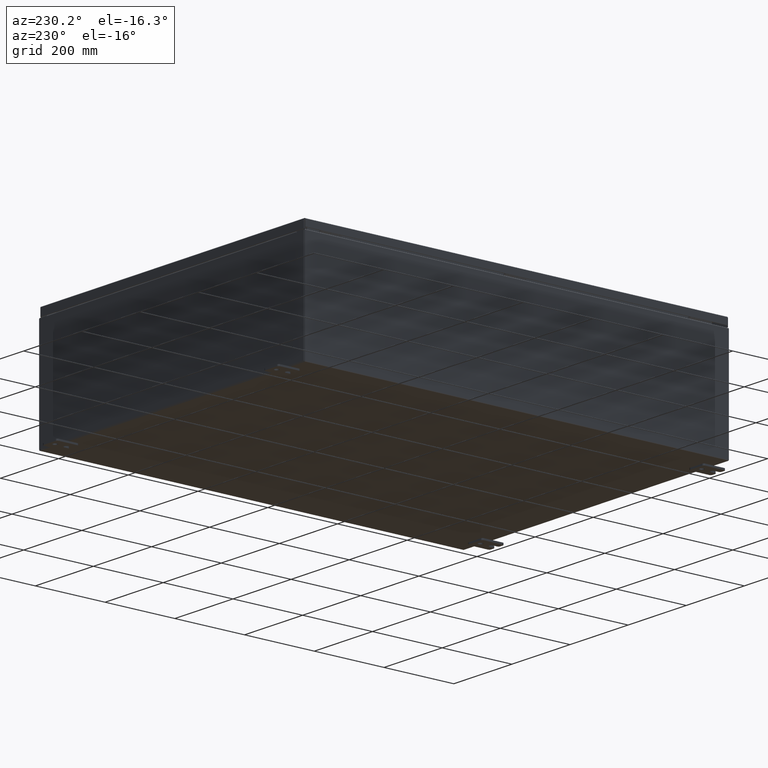
[diagram: clean part render]
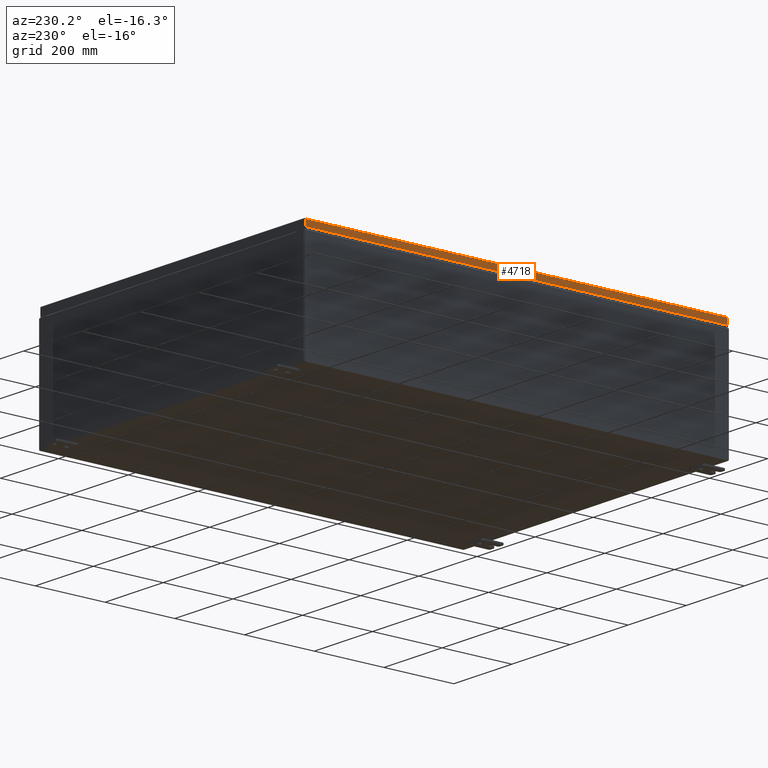
[diagram: same view with one face highlighted and labeled with its STEP entity id]
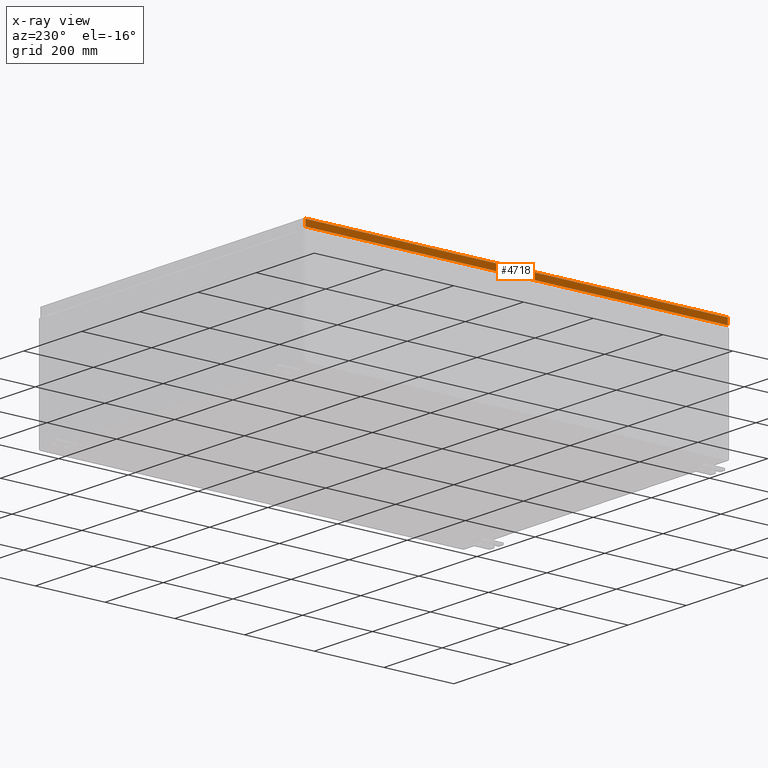
[diagram: x-ray of the same camera — body ghosted, the highlighted face saturated]
A machine part, auxiliary view. The second image highlights one B-rep face of the part: STEP entity #4718.
The next image is the same camera in x-ray: the body ghosted, the highlighted face saturated — about 0% of this face is hidden behind the body in this view.
In plain terms, the highlighted planar face has unit normal (1, -0, -0).
Its self-contained STEP definition (entity closure, byte-faithful):
#20 = DIRECTION ( 'NONE',  ( -9.129935853499285800E-017, -1.000000000000000000, 1.369490378024904800E-016 ) ) ;
#2329 = DIRECTION ( 'NONE',  ( -3.034122441942816500E-015, 6.982962677686267500E-015, -1.000000000000000000 ) ) ;
#3076 = CARTESIAN_POINT ( 'NONE',  ( -17.93749999999999600, 23.84865786437627100, -0.08770000000000659200 ) ) ;
#4718 = ADVANCED_FACE ( 'NONE', ( #18426 ), #10976, .F. ) ;
#4972 = CARTESIAN_POINT ( 'NONE',  ( -17.93749999999999600, 1.637682243721441900E-015, 5.468538495836084400E-014 ) ) ;
#10433 = CARTESIAN_POINT ( 'NONE',  ( -17.93749999999999600, 23.84865786437627100, 2.212196727382094500E-013 ) ) ;
#10976 = PLANE ( 'NONE',  #29817 ) ;
#11825 = VECTOR ( 'NONE', #21109, 39.37007874015748100 ) ;
#12539 = VECTOR ( 'NONE', #24168, 39.37007874015748100 ) ;
#12986 = CARTESIAN_POINT ( 'NONE',  ( -17.93750000000000000, -23.84865786437626800, -0.7949999999999996000 ) ) ;
#13226 = VERTEX_POINT ( 'NONE', #3076 ) ;
#16344 = EDGE_LOOP ( 'NONE', ( #35710, #31009, #64311, #46879 ) ) ;
#17978 = VECTOR ( 'NONE', #20, 39.37007874015748100 ) ;
#18426 = FACE_OUTER_BOUND ( 'NONE', #16344, .T. ) ;
#21109 = DIRECTION ( 'NONE',  ( -3.034122441942816500E-015, 6.982962677686267500E-015, -1.000000000000000000 ) ) ;
#22143 = VERTEX_POINT ( 'NONE', #29840 ) ;
#24168 = DIRECTION ( 'NONE',  ( 9.129935853499365900E-017, 1.000000000000000000, 1.226835130313977200E-016 ) ) ;
#24622 = LINE ( 'NONE', #63623, #17978 ) ;
#26689 = LINE ( 'NONE', #61298, #12539 ) ;
#27984 = CARTESIAN_POINT ( 'NONE',  ( -17.93750000000000000, -23.84865786437626800, -0.08770000000000334500 ) ) ;
#29400 = VERTEX_POINT ( 'NONE', #12986 ) ;
#29817 = AXIS2_PLACEMENT_3D ( 'NONE', #4972, #35249, #57379 ) ;
#29840 = CARTESIAN_POINT ( 'NONE',  ( -17.93749999999999600, 23.84865786437627500, -0.7949999999999938200 ) ) ;
#30430 = LINE ( 'NONE', #44762, #57490 ) ;
#31009 = ORIENTED_EDGE ( 'NONE', *, *, #47614, .T. ) ;
#34678 = EDGE_CURVE ( 'NONE', #13226, #42966, #24622, .T. ) ;
#35249 = DIRECTION ( 'NONE',  ( 1.000000000000000000, -9.129935853499329000E-017, -3.034122441942816500E-015 ) ) ;
#35710 = ORIENTED_EDGE ( 'NONE', *, *, #34678, .F. ) ;
#42966 = VERTEX_POINT ( 'NONE', #27984 ) ;
#44762 = CARTESIAN_POINT ( 'NONE',  ( -17.93750000000000000, -23.84865786437627100, -0.07469999999999976700 ) ) ;
#46879 = ORIENTED_EDGE ( 'NONE', *, *, #68898, .F. ) ;
#47614 = EDGE_CURVE ( 'NONE', #13226, #22143, #68334, .T. ) ;
#50243 = EDGE_CURVE ( 'NONE', #29400, #22143, #26689, .T. ) ;
#57379 = DIRECTION ( 'NONE',  ( -3.034122441942816500E-015, 0.0000000000000000000, -1.000000000000000000 ) ) ;
#57490 = VECTOR ( 'NONE', #2329, 39.37007874015748100 ) ;
#61298 = CARTESIAN_POINT ( 'NONE',  ( -17.93750000000000000, -23.93750000000000000, -0.7949999999999997100 ) ) ;
#63623 = CARTESIAN_POINT ( 'NONE',  ( -17.93750000000000000, -23.93750000000000000, -0.08770000000000004200 ) ) ;
#64311 = ORIENTED_EDGE ( 'NONE', *, *, #50243, .F. ) ;
#68334 = LINE ( 'NONE', #10433, #11825 ) ;
#68898 = EDGE_CURVE ( 'NONE', #42966, #29400, #30430, .T. ) ;